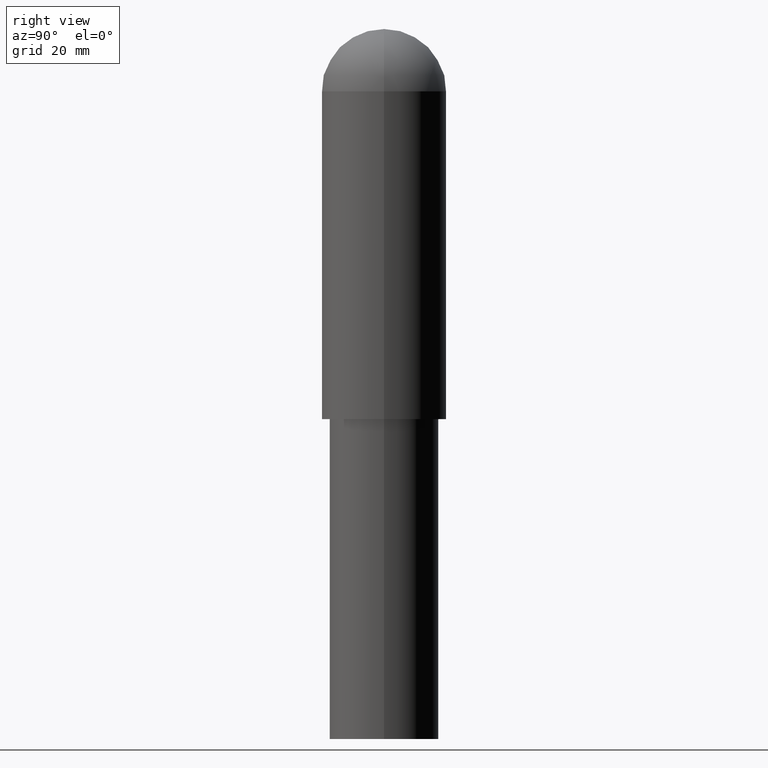
[diagram: clean part render]
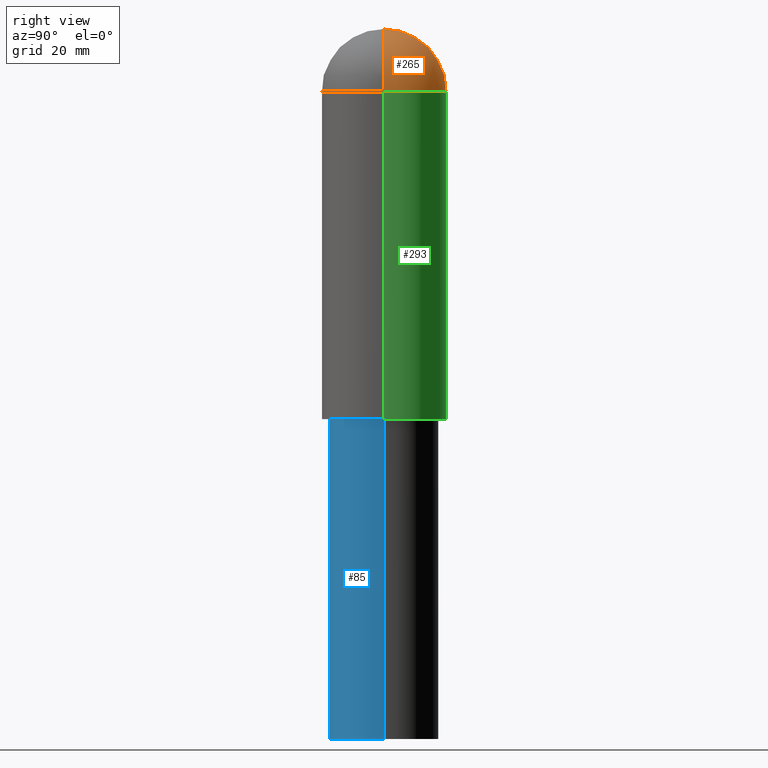
[diagram: same view with three faces highlighted in distinct colors, each labeled with its STEP entity id]
A machine part, right view with three faces highlighted in distinct colors.
Their STEP definitions:

[orange] entity #265 — the highlighted spherical surface has radius 16 mm.
#209=CARTESIAN_POINT('',(-11.716946060098074,-1.613904443833867,166.0));
#210=VERTEX_POINT('',#209);
#226=CARTESIAN_POINT('',(20.283053939901926,-1.613904443833867,166.0));
#227=VERTEX_POINT('',#226);
#244=CARTESIAN_POINT('',(4.283053939901925,-1.613904443833869,166.0));
#245=DIRECTION('',(0.0,0.0,1.0));
#246=DIRECTION('',(1.0,0.0,0.0));
#247=AXIS2_PLACEMENT_3D('',#244,#245,#246);
#248=SPHERICAL_SURFACE('',#247,16.0);
#249=CARTESIAN_POINT('',(4.283053939901925,-1.613904443833869,166.0));
#250=DIRECTION('',(0.0,-1.0,0.0));
#251=DIRECTION('',(0.0,0.0,1.0));
#252=AXIS2_PLACEMENT_3D('',#249,#250,#251);
#253=CIRCLE('',#252,16.0);
#254=EDGE_CURVE('',#227,#210,#253,.T.);
#255=ORIENTED_EDGE('',*,*,#254,.F.);
#256=CARTESIAN_POINT('',(4.283053939901925,-1.613904443833869,166.0));
#257=DIRECTION('',(0.0,0.0,1.0));
#258=DIRECTION('',(-1.0,0.0,0.0));
#259=AXIS2_PLACEMENT_3D('',#256,#257,#258);
#260=CIRCLE('',#259,16.0);
#261=EDGE_CURVE('',#227,#210,#260,.T.);
#262=ORIENTED_EDGE('',*,*,#261,.T.);
#263=EDGE_LOOP('',(#255,#262));
#264=FACE_OUTER_BOUND('',#263,.T.);
#265=ADVANCED_FACE('',(#264),#248,.T.);

[blue] entity #85 — the highlighted cylindrical surface (partial cylindrical patch) has radius 14 mm, axis along (0, 0, 1).
#44=CARTESIAN_POINT('',(4.283053939901920,-1.613904443833871,0.0));
#45=DIRECTION('',(0.0,0.0,1.0));
#46=DIRECTION('',(-1.0,0.0,0.0));
#47=AXIS2_PLACEMENT_3D('',#44,#45,#46);
#48=CYLINDRICAL_SURFACE('',#47,14.000000000000002);
#49=CARTESIAN_POINT('',(-9.716946060098081,-1.613904443833869,0.0));
#50=VERTEX_POINT('',#49);
#51=CARTESIAN_POINT('',(-9.716946060098081,-1.613904443833869,82.000000000000014));
#52=VERTEX_POINT('',#51);
#53=CARTESIAN_POINT('',(-9.716946060098081,-1.613904443833869,0.0));
#54=DIRECTION('',(0.0,0.0,1.0));
#55=VECTOR('',#54,82.000000000000014);
#56=LINE('',#53,#55);
#57=EDGE_CURVE('',#50,#52,#56,.T.);
#58=ORIENTED_EDGE('',*,*,#57,.F.);
#59=CARTESIAN_POINT('',(18.283053939901922,-1.613904443833869,0.0));
#60=VERTEX_POINT('',#59);
#61=CARTESIAN_POINT('',(4.283053939901920,-1.613904443833871,0.0));
#62=DIRECTION('',(0.0,0.0,-1.0));
#63=DIRECTION('',(-1.0,0.0,0.0));
#64=AXIS2_PLACEMENT_3D('',#61,#62,#63);
#65=CIRCLE('',#64,14.000000000000002);
#66=EDGE_CURVE('',#60,#50,#65,.T.);
#67=ORIENTED_EDGE('',*,*,#66,.F.);
#68=CARTESIAN_POINT('',(18.283053939901926,-1.613904443833868,82.000000000000014));
#69=VERTEX_POINT('',#68);
#70=CARTESIAN_POINT('',(18.283053939901926,-1.613904443833868,82.000000000000014));
#71=DIRECTION('',(0.0,0.0,-1.0));
#72=VECTOR('',#71,82.000000000000014);
#73=LINE('',#70,#72);
#74=EDGE_CURVE('',#69,#60,#73,.T.);
#75=ORIENTED_EDGE('',*,*,#74,.F.);
#76=CARTESIAN_POINT('',(4.283053939901920,-1.613904443833871,82.000000000000014));
#77=DIRECTION('',(0.0,0.0,-1.0));
#78=DIRECTION('',(-1.0,0.0,0.0));
#79=AXIS2_PLACEMENT_3D('',#76,#77,#78);
#80=CIRCLE('',#79,14.000000000000002);
#81=EDGE_CURVE('',#69,#52,#80,.T.);
#82=ORIENTED_EDGE('',*,*,#81,.T.);
#83=EDGE_LOOP('',(#58,#67,#75,#82));
#84=FACE_OUTER_BOUND('',#83,.T.);
#85=ADVANCED_FACE('',(#84),#48,.T.);

[green] entity #293 — the highlighted cylindrical surface (partial cylindrical patch) has radius 16 mm, axis along (0, 0, 1).
#207=CARTESIAN_POINT('',(-11.716946060098074,-1.613904443833867,82.0));
#208=VERTEX_POINT('',#207);
#209=CARTESIAN_POINT('',(-11.716946060098074,-1.613904443833867,166.0));
#210=VERTEX_POINT('',#209);
#211=CARTESIAN_POINT('',(-11.716946060098074,-1.613904443833867,82.0));
#212=DIRECTION('',(0.0,0.0,1.0));
#213=VECTOR('',#212,84.0);
#214=LINE('',#211,#213);
#215=EDGE_CURVE('',#208,#210,#214,.T.);
#217=CARTESIAN_POINT('',(20.283053939901926,-1.613904443833867,82.000000000000014));
#218=VERTEX_POINT('',#217);
#226=CARTESIAN_POINT('',(20.283053939901926,-1.613904443833867,166.0));
#227=VERTEX_POINT('',#226);
#228=CARTESIAN_POINT('',(20.283053939901926,-1.613904443833867,166.0));
#229=DIRECTION('',(0.0,0.0,-1.0));
#230=VECTOR('',#229,83.999999999999986);
#231=LINE('',#228,#230);
#232=EDGE_CURVE('',#227,#218,#231,.T.);
#256=CARTESIAN_POINT('',(4.283053939901925,-1.613904443833869,166.0));
#257=DIRECTION('',(0.0,0.0,1.0));
#258=DIRECTION('',(-1.0,0.0,0.0));
#259=AXIS2_PLACEMENT_3D('',#256,#257,#258);
#260=CIRCLE('',#259,16.0);
#261=EDGE_CURVE('',#227,#210,#260,.T.);
#276=CARTESIAN_POINT('',(4.283053939901925,-1.613904443833869,82.000000000000014));
#277=DIRECTION('',(0.0,0.0,1.0));
#278=DIRECTION('',(-1.0,0.0,0.0));
#279=AXIS2_PLACEMENT_3D('',#276,#277,#278);
#280=CYLINDRICAL_SURFACE('',#279,16.0);
#281=ORIENTED_EDGE('',*,*,#215,.T.);
#282=ORIENTED_EDGE('',*,*,#261,.F.);
#283=ORIENTED_EDGE('',*,*,#232,.T.);
#284=CARTESIAN_POINT('',(4.283053939901925,-1.613904443833869,82.000000000000014));
#285=DIRECTION('',(0.0,0.0,-1.0));
#286=DIRECTION('',(-1.0,0.0,0.0));
#287=AXIS2_PLACEMENT_3D('',#284,#285,#286);
#288=CIRCLE('',#287,16.0);
#289=EDGE_CURVE('',#208,#218,#288,.T.);
#290=ORIENTED_EDGE('',*,*,#289,.F.);
#291=EDGE_LOOP('',(#281,#282,#283,#290));
#292=FACE_OUTER_BOUND('',#291,.T.);
#293=ADVANCED_FACE('',(#292),#280,.T.);